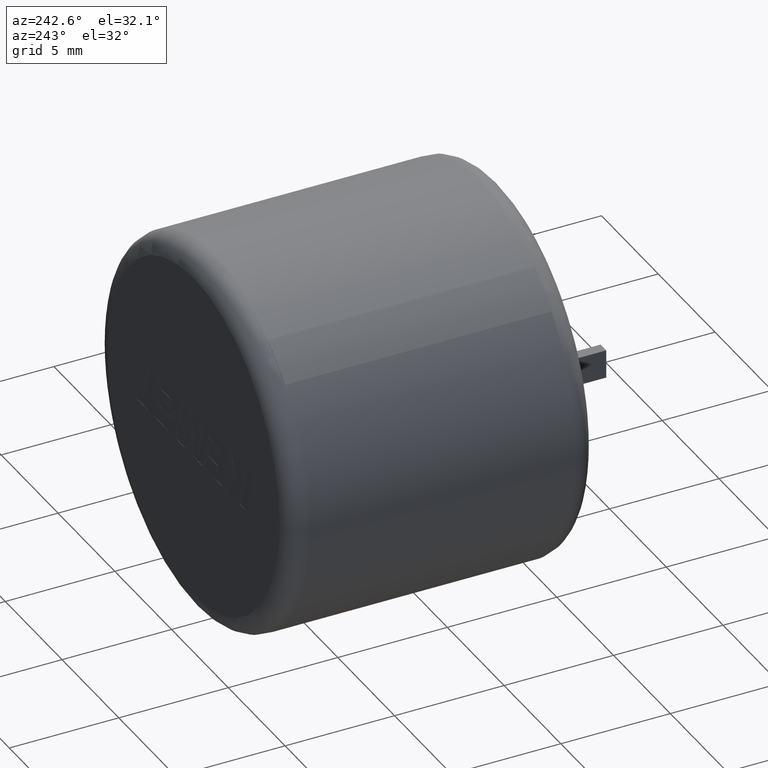
[diagram: clean part render]
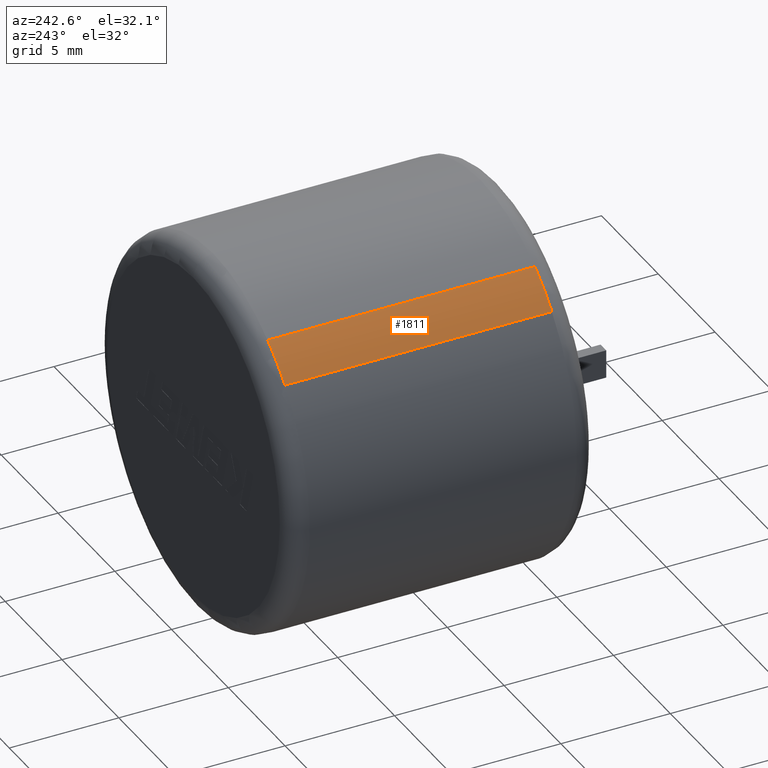
[diagram: same view with one face highlighted and labeled with its STEP entity id]
A machine part, auxiliary view. The second image highlights one B-rep face of the part: STEP entity #1811.
In plain terms, the highlighted cylindrical surface (partial cylindrical patch) has radius 8.51 mm, axis along (-0, -1, -0).
Its self-contained STEP definition (entity closure, byte-faithful):
#29 = VECTOR ( 'NONE', #1308, 1000.000000000000000 ) ;
#88 = CARTESIAN_POINT ( 'NONE',  ( 0.0000000000000000000, 0.9029999999999992500, 0.0000000000000000000 ) ) ;
#129 = ORIENTED_EDGE ( 'NONE', *, *, #1398, .T. ) ;
#336 = DIRECTION ( 'NONE',  ( 0.0000000000000000000, 0.0000000000000000000, -1.000000000000000000 ) ) ;
#411 = ORIENTED_EDGE ( 'NONE', *, *, #2697, .T. ) ;
#432 = CARTESIAN_POINT ( 'NONE',  ( -6.308097320235277500, 0.9029999999999992500, 5.712093153865798600 ) ) ;
#479 = CARTESIAN_POINT ( 'NONE',  ( -4.802628229569212900, 13.09700000000000100, 7.025301565665696300 ) ) ;
#485 = VERTEX_POINT ( 'NONE', #1194 ) ;
#560 = EDGE_LOOP ( 'NONE', ( #411, #129, #1540, #629 ) ) ;
#568 = DIRECTION ( 'NONE',  ( 0.0000000000000000000, 0.0000000000000000000, -1.000000000000000000 ) ) ;
#574 = CARTESIAN_POINT ( 'NONE',  ( -6.308097320235275700, 14.00000000000000000, 5.712093153865800400 ) ) ;
#608 = CYLINDRICAL_SURFACE ( 'NONE', #2355, 8.509999999999999800 ) ;
#629 = ORIENTED_EDGE ( 'NONE', *, *, #1484, .T. ) ;
#884 = CIRCLE ( 'NONE', #2202, 8.509999999999999800 ) ;
#952 = DIRECTION ( 'NONE',  ( -0.0000000000000000000, -1.000000000000000000, -0.0000000000000000000 ) ) ;
#960 = VERTEX_POINT ( 'NONE', #1478 ) ;
#1008 = DIRECTION ( 'NONE',  ( -0.0000000000000000000, -1.000000000000000000, -0.0000000000000000000 ) ) ;
#1024 = EDGE_CURVE ( 'NONE', #960, #1057, #1252, .T. ) ;
#1057 = VERTEX_POINT ( 'NONE', #479 ) ;
#1116 = CARTESIAN_POINT ( 'NONE',  ( -4.802628229569212900, 14.00000000000000000, 7.025301565665696300 ) ) ;
#1194 = CARTESIAN_POINT ( 'NONE',  ( -6.308097320235275700, 13.09700000000000100, 5.712093153865800400 ) ) ;
#1252 = LINE ( 'NONE', #1116, #29 ) ;
#1284 = VECTOR ( 'NONE', #2272, 1000.000000000000000 ) ;
#1308 = DIRECTION ( 'NONE',  ( 0.0000000000000000000, 1.000000000000000000, 0.0000000000000000000 ) ) ;
#1398 = EDGE_CURVE ( 'NONE', #2427, #960, #884, .T. ) ;
#1478 = CARTESIAN_POINT ( 'NONE',  ( -4.802628229569210200, 0.9029999999999992500, 7.025301565665699000 ) ) ;
#1482 = AXIS2_PLACEMENT_3D ( 'NONE', #1838, #1008, #568 ) ;
#1484 = EDGE_CURVE ( 'NONE', #1057, #485, #2131, .T. ) ;
#1523 = LINE ( 'NONE', #574, #1284 ) ;
#1540 = ORIENTED_EDGE ( 'NONE', *, *, #1024, .T. ) ;
#1790 = DIRECTION ( 'NONE',  ( 0.0000000000000000000, 1.000000000000000000, 0.0000000000000000000 ) ) ;
#1811 = ADVANCED_FACE ( 'NONE', ( #2064 ), #608, .T. ) ;
#1838 = CARTESIAN_POINT ( 'NONE',  ( 0.0000000000000000000, 13.09700000000000100, 0.0000000000000000000 ) ) ;
#2025 = CARTESIAN_POINT ( 'NONE',  ( 0.0000000000000000000, 14.00000000000000000, 0.0000000000000000000 ) ) ;
#2064 = FACE_OUTER_BOUND ( 'NONE', #560, .T. ) ;
#2131 = CIRCLE ( 'NONE', #1482, 8.509999999999999800 ) ;
#2202 = AXIS2_PLACEMENT_3D ( 'NONE', #88, #1790, #2451 ) ;
#2272 = DIRECTION ( 'NONE',  ( -0.0000000000000000000, -1.000000000000000000, -0.0000000000000000000 ) ) ;
#2355 = AXIS2_PLACEMENT_3D ( 'NONE', #2025, #952, #336 ) ;
#2427 = VERTEX_POINT ( 'NONE', #432 ) ;
#2451 = DIRECTION ( 'NONE',  ( -4.440892098500627000E-015, 0.0000000000000000000, -1.000000000000000000 ) ) ;
#2697 = EDGE_CURVE ( 'NONE', #485, #2427, #1523, .T. ) ;